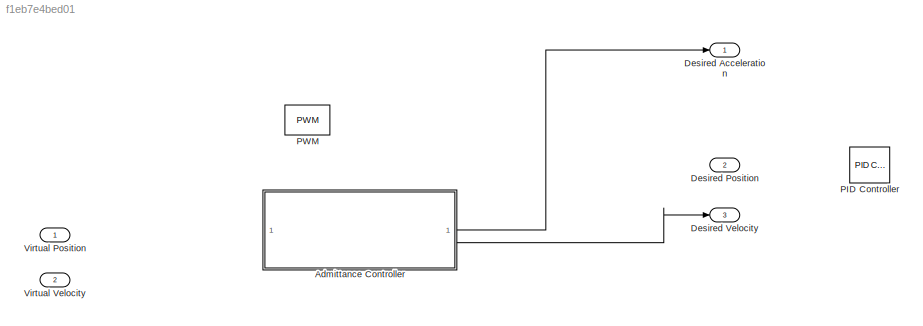
MODEL slx_f1eb7e4bed01
KIND model
CONFIG AbsTol = auto
CONFIG EnableMultiTasking = off
CONFIG FixedStep = auto
CONFIG MaxStep = auto
CONFIG MinStep = auto
CONFIG RelTol = 1e-3
CONFIG SampleTimeConstraint = Unconstrained
CONFIG SolverName = VariableStepAuto
CONFIG StartTime = 0.0
CONFIG StopTime = 10.0
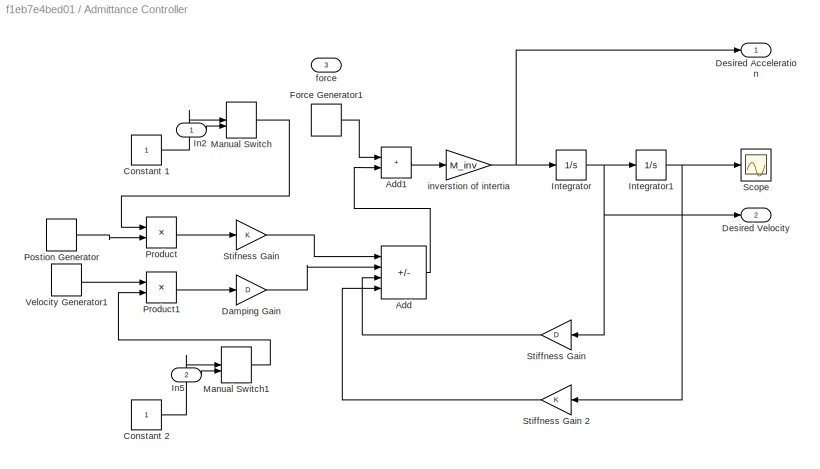
BLOCK [SubSystem] Admittance Controller
BLOCK [Sum] Admittance Controller/Add
  IconShape = rectangular
  Inputs = ++--
BLOCK [Sum] Admittance Controller/Add1
  IconShape = rectangular
BLOCK [Constant] Admittance Controller/Constant 1
BLOCK [Constant] Admittance Controller/Constant 2
BLOCK [Gain] Admittance Controller/Damping Gain
  Gain = D
BLOCK [Outport] Admittance Controller/Desired Acceleration
BLOCK [Outport] Admittance Controller/Desired Velocity
  Port = 2
BLOCK [DiscretePulseGenerator] Admittance Controller/Force Generator1
  Period = 10
  PulseType = Time based
  PulseWidth = 5
BLOCK [Inport] Admittance Controller/In2
BLOCK [Inport] Admittance Controller/In5
  Port = 2
BLOCK [Integrator] Admittance Controller/Integrator
BLOCK [Integrator] Admittance Controller/Integrator1
BLOCK [ManualSwitch] Admittance Controller/Manual Switch
BLOCK [ManualSwitch] Admittance Controller/Manual Switch1
BLOCK [DiscretePulseGenerator] Admittance Controller/Postion Generator
  Period = 10
  PulseType = Time based
  PulseWidth = 5
BLOCK [Product] Admittance Controller/Product
BLOCK [Product] Admittance Controller/Product1
BLOCK [Scope] Admittance Controller/Scope
  Floating = off
  NumInputPorts = 1
  ScopeSpecificationString = Simulink.scopes.TimeScopeBlockCfg('CurrentConfiguration', extmgr.ConfigurationSet(extmgr.Configuration('Core','General UI',true),extmgr.Configuration('Core','Source UI',true),extmgr.Configuration('Sources','WiredSimulink',true),extmgr.Configuration('Visuals','Time Domain',true,'SerializedDisplays',{struct('MinYLimReal','-0.25006','MaxYLimReal','0.92843','YLabelReal','','MinYLimMag','0.00000','MaxY...<+1331ch>
BLOCK [Gain] Admittance Controller/Stiffness Gain
  Gain = D
BLOCK [Gain] Admittance Controller/Stiffness Gain 2
  Gain = K
BLOCK [Gain] Admittance Controller/Stifness Gain
  Gain = K
BLOCK [DiscretePulseGenerator] Admittance Controller/Velocity Generator1
  Period = 10
  PulseType = Time based
  PulseWidth = 5
BLOCK [Inport] Admittance Controller/force
  Port = 3
BLOCK [Gain] Admittance Controller/inverstion of intertia
  Gain = M_inv
BLOCK [Outport] Desired Acceleration
BLOCK [Outport] Desired Position
  Port = 2
BLOCK [Outport] Desired Velocity
  Port = 3
BLOCK [Reference] PID Controller  REF=slpidlib/PID Controller
  LibrarySourceBlock = simulink/Continuous/PID Controller
  SourceBlock = slpidlib/PID Controller
  SourceType = PID 1dof
BLOCK [Reference] PWM  REF=simulink/Discontinuities/PWM
  DisableCoverage = on
  SourceBlock = simulink/Discontinuities/PWM
  SourceType = PWM
BLOCK [Inport] Virtual Position
BLOCK [Inport] Virtual Velocity
  Port = 2
LINE Admittance Controller/Add1:1 -> Admittance Controller/inverstion of intertia:1
LINE Admittance Controller/Add:1 -> Admittance Controller/Add1:2
LINE Admittance Controller/Constant 1:1 -> Admittance Controller/Manual Switch:1
LINE Admittance Controller/Constant 2:1 -> Admittance Controller/Manual Switch1:1
LINE Admittance Controller/Damping Gain:1 -> Admittance Controller/Add:2
LINE Admittance Controller/Force Generator1:1 -> Admittance Controller/Add1:1
LINE Admittance Controller/In2:1 -> Admittance Controller/Manual Switch:2
LINE Admittance Controller/In5:1 -> Admittance Controller/Manual Switch1:2
NET Admittance Controller/Integrator1:1 -> Admittance Controller/Scope:1, Admittance Controller/Stiffness Gain 2:1
NET Admittance Controller/Integrator:1 -> Admittance Controller/Desired Velocity:1, Admittance Controller/Integrator1:1, Admittance Controller/Stiffness Gain:1
LINE Admittance Controller/Manual Switch1:1 -> Admittance Controller/Product1:2
LINE Admittance Controller/Manual Switch:1 -> Admittance Controller/Product:1
LINE Admittance Controller/Postion Generator:1 -> Admittance Controller/Product:2
LINE Admittance Controller/Product1:1 -> Admittance Controller/Damping Gain:1
LINE Admittance Controller/Product:1 -> Admittance Controller/Stifness Gain:1
LINE Admittance Controller/Stiffness Gain 2:1 -> Admittance Controller/Add:4
LINE Admittance Controller/Stiffness Gain:1 -> Admittance Controller/Add:3
LINE Admittance Controller/Stifness Gain:1 -> Admittance Controller/Add:1
LINE Admittance Controller/Velocity Generator1:1 -> Admittance Controller/Product1:1
NET Admittance Controller/inverstion of intertia:1 -> Admittance Controller/Desired Acceleration:1, Admittance Controller/Integrator:1
LINE Admittance Controller:1 -> Desired Acceleration:1
LINE Admittance Controller:2 -> Desired Velocity:1
note: NET lines group one-source signal fan-out (src -> all destinations, sorted); 1:1 wires keep LINE
